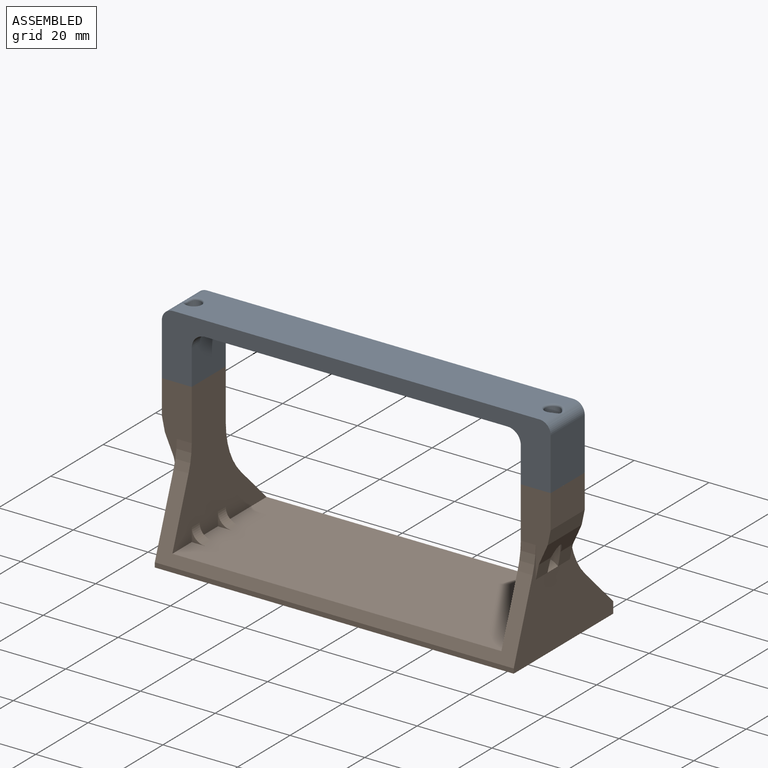
[diagram: assembled view]
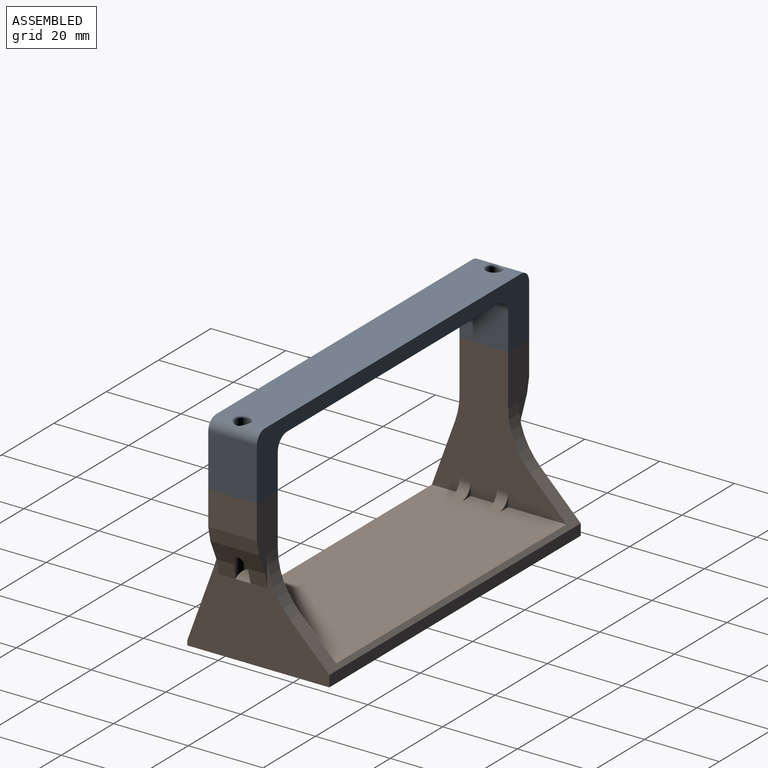
[diagram: assembled view, second angle]
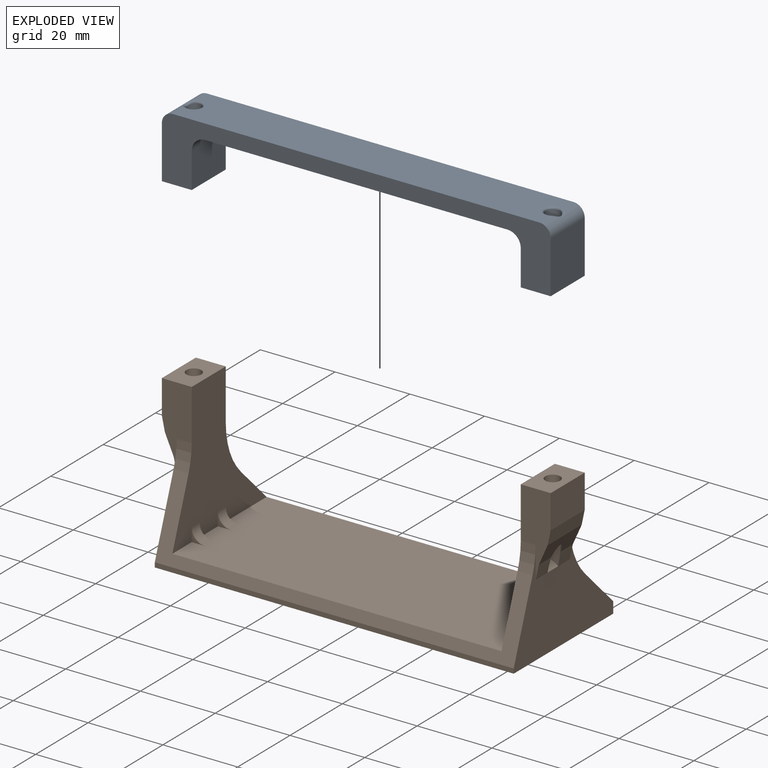
[diagram: exploded view]
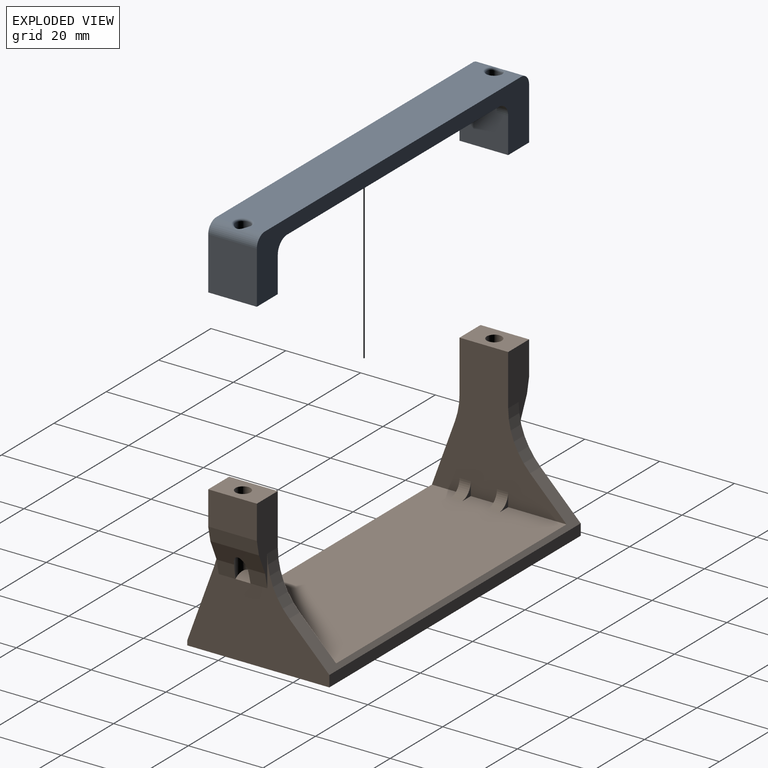
[diagram: exploded view, second angle]
ASSEMBLY  parts=2 mates=3
PART A: 26 faces, bbox 104x13x17 mm
  f0: plane 98x13mm, normal (0,0,1), area 1244.6mm2, adj f1,f12,f17,f19,f22,f25
  f1: cylinder r=3mm len=13mm, axis (0,1,0), area 55mm2, adj f0,f11,f12,f17,f23
  f2: plane 3.55x3.55mm, normal (0,1,0), area 2.7mm2, adj f5,f6,f7
  f3: plane 14.02x13mm, normal (-1,0,0), area 182.3mm2, adj f4,f12,f17,f19
  f4: plane 13x8mm, normal (0,0,-1), area 91.4mm2, adj f3,f5,f12,f17,f21
  f5: plane 13.02x13mm, normal (1,0,0), area 148mm2, adj f2,f4,f6,f7,f12,f16,f17,f18
  f6: cylinder r=3.55mm len=3.55mm, axis (0,1,0), area 16.7mm2, adj f2,f5,f7,f12
  f7: plane 88x13mm, normal (0,0,-1), area 1101.4mm2, adj f2,f5,f6,f8,f9,f12,f13,f14
  f8: cylinder r=3.55mm len=3.55mm, axis (0,1,0), area 16.7mm2, adj f7,f9,f12,f13
  f9: plane 13.02x13mm, normal (-1,0,0), area 148mm2, adj f7,f8,f10,f12,f13,f14,f15,f17
  f10: plane 13x8mm, normal (0,0,-1), area 91.4mm2, adj f9,f11,f12,f17,f20
  f11: plane 14.02x13mm, normal (1,0,0), area 182.3mm2, adj f1,f10,f12,f17
  f12: plane 104x17.02mm, normal (0,-1,0), area 625.9mm2, adj f0,f1,f3,f4,f5,f6,f7,f8
  f13: plane 3.55x3.55mm, normal (0,1,0), area 2.7mm2, adj f7,f8,f9
  f14: plane 3.55x3.55mm, normal (0,-1,0), area 2.7mm2, adj f7,f9,f15
  f15: cylinder r=3.55mm len=3.55mm, axis (0,-1,0), area 16.7mm2, adj f7,f9,f14,f17
  f16: cylinder r=3.55mm len=3.55mm, axis (0,-1,0), area 16.7mm2, adj f5,f7,f17,f18
  f17: plane 104x17.02mm, normal (0,1,0), area 625.9mm2, adj f0,f1,f3,f4,f5,f7,f9,f10
  f18: plane 3.55x3.55mm, normal (0,-1,0), area 2.7mm2, adj f5,f7,f16
  f19: cylinder r=3mm len=13mm, axis (0,-1,0), area 55mm2, adj f0,f3,f12,f17,f24
  f20: cylinder r=2mm len=16.52mm, axis (0,0,-1), area 206.5mm2, adj f10,f22,f23
  f21: cylinder r=2mm len=16.52mm, axis (0,0,-1), area 206.5mm2, adj f4,f24,f25
  f22: torus R=2.5mm, axis (0,0,1), area 6.8mm2, adj f0,f20,f23
  f23: bspline ~4.86x2.39mm, area 5.1mm2, adj f1,f20,f22
  f24: bspline ~4.86x2.39mm, area 5.1mm2, adj f19,f21,f25
  f25: torus R=2.5mm, axis (0,0,1), area 6.8mm2, adj f0,f21,f24
PART B: 46 faces, bbox 104x38x41.5 mm
  f0: plane 13x5.34mm, normal (0.91,0,-0.41), area 68.3mm2, adj f7,f9,f36,f40,f41,f45
  f1: plane 38x27.88mm, normal (1,0,0), area 558mm2, adj f7,f9,f12,f13,f14,f27,f28,f29
  f2: plane 38x27.88mm, normal (-1,0,0), area 558mm2, adj f3,f5,f12,f13,f14,f27,f29,f31
  f3: plane 22x8mm, normal (0,-1,0), area 116.5mm2, adj f2,f20,f21,f32,f33,f34,f42,f44
  f4: plane 3.55x3.55mm, normal (0,1,0), area 2.7mm2, adj f8,f20,f25
  f5: plane 22x8mm, normal (0,1,0), area 116.5mm2, adj f2,f20,f21,f31,f33,f34,f43,f44
  f6: plane 3.55x3.55mm, normal (0,-1,0), area 2.7mm2, adj f8,f17,f18
  f7: plane 22x8mm, normal (0,-1,0), area 116.5mm2, adj f0,f1,f16,f17,f30,f35,f41,f45
  f8: plane 88x36mm, normal (0,0,1), area 3125.4mm2, adj f4,f6,f10,f11,f15,f17,f18,f19
  f9: plane 22x8mm, normal (0,1,0), area 116.5mm2, adj f0,f1,f16,f17,f28,f35,f40,f45
  f10: plane 3.55x3.55mm, normal (0,1,0), area 2.7mm2, adj f8,f17,f23
  f11: plane 3.55x3.55mm, normal (0,1,0), area 2.7mm2, adj f8,f19,f20
  f12: plane 96x3mm, normal (0,1,0), area 288mm2, adj f1,f2,f14,f27
  f13: plane 96x1.25mm, normal (0,-1,0), area 119.8mm2, adj f1,f2,f14,f29
  f14: plane 96x38mm, normal (0,0,-1), area 3648mm2, adj f1,f2,f12,f13
  f15: plane 3.55x3.55mm, normal (0,1,0), area 2.7mm2, adj f8,f17,f18
  f16: plane 13x8mm, normal (0,0,1), area 91.4mm2, adj f7,f9,f17,f35,f36
  f17: plane 37.5x36mm, normal (-1,0,0), area 672.5mm2, adj f6,f7,f8,f9,f10,f15,f16,f18
  f18: cylinder r=3.55mm len=3.55mm, axis (0,1,0), area 16.7mm2, adj f6,f8,f15,f17
  f19: cylinder r=3.55mm len=3.55mm, axis (0,1,0), area 16.7mm2, adj f8,f11,f20,f22
  f20: plane 37.5x36mm, normal (1,0,0), area 672.5mm2, adj f3,f4,f5,f8,f11,f19,f21,f22
  f21: plane 13x8mm, normal (0,0,1), area 91.4mm2, adj f3,f5,f20,f34,f37
  f22: plane 3.55x3.55mm, normal (0,-1,0), area 2.7mm2, adj f8,f19,f20
  f23: cylinder r=3.55mm len=3.55mm, axis (0,-1,0), area 16.7mm2, adj f8,f10,f17,f24
  f24: plane 3.55x3.55mm, normal (0,-1,0), area 2.7mm2, adj f8,f17,f23
  f25: cylinder r=3.55mm len=3.55mm, axis (0,-1,0), area 16.7mm2, adj f4,f8,f20,f26
  f26: plane 3.55x3.55mm, normal (0,-1,0), area 2.7mm2, adj f8,f20,f25
  f27: plane 96x10.74mm, normal (0,0.71,0.71), area 246mm2, adj f1,f2,f8,f12,f17,f20,f28,f31
  f28: cylinder r=20mm len=14.14mm, axis (1,0,0), area 62.8mm2, adj f1,f9,f17,f27
  f29: plane 96x19.81mm, normal (0,-0.94,0.34), area 426.2mm2, adj f1,f2,f8,f13,f17,f20,f30,f32
  f30: cylinder r=20mm len=6.83mm, axis (1,0,0), area 27.9mm2, adj f1,f7,f17,f29
  f31: cylinder r=20mm len=14.14mm, axis (-1,0,0), area 62.8mm2, adj f2,f5,f20,f27
  f32: cylinder r=20mm len=6.83mm, axis (-1,0,0), area 27.9mm2, adj f2,f3,f20,f29
  f33: plane 13x5.34mm, normal (-0.91,0,-0.41), area 68.3mm2, adj f3,f5,f37,f42,f43,f44
  f34: plane 13x9mm, normal (-1,0,0), area 117mm2, adj f3,f5,f21,f44
  f35: plane 13x9mm, normal (1,0,0), area 117mm2, adj f7,f9,f16,f45
  f36: cylinder r=2mm len=22mm, axis (0,0,1), area 239.5mm2, adj f0,f16,f39,f40,f41
  f37: cylinder r=2mm len=22mm, axis (0,0,1), area 239.5mm2, adj f21,f33,f38,f42,f43
  f38: plane 4x2mm, normal (-0.71,0,0.71), area 8.9mm2, adj f2,f37
  f39: plane 4x2mm, normal (0.71,0,0.71), area 8.9mm2, adj f1,f36
  f40: plane 4.67x3.83mm, normal (0.98,0,-0.21), area 17.8mm2, adj f0,f1,f9,f36
  f41: plane 4.67x3.83mm, normal (0.98,0,-0.21), area 17.8mm2, adj f0,f1,f7,f36
  f42: plane 4.67x3.83mm, normal (-0.98,0,-0.21), area 17.8mm2, adj f2,f3,f33,f37
  f43: plane 4.67x3.83mm, normal (-0.98,0,-0.21), area 17.8mm2, adj f2,f5,f33,f37
  f44: plane 13x3.83mm, normal (-0.98,0,-0.21), area 50.9mm2, adj f3,f5,f33,f34
  f45: plane 13x3.83mm, normal (0.98,0,-0.21), area 50.9mm2, adj f0,f7,f9,f35
PLACE A t=(3.83,-8.6,52.63)mm
PLACE B t=(3.83,-1,2.11)mm
MATE planar A.f20 <-> B.f36  axis (0,0,-1) through (51.83,-5.1,39.61)mm
MATE planar A.f5 <-> B.f20  axis (1,0,0) through (-40.17,-5.1,45.44)mm
MATE planar B.f3 <-> A.f12  axis (0,-1,0) through (-48.17,-11.6,35.11)mm
